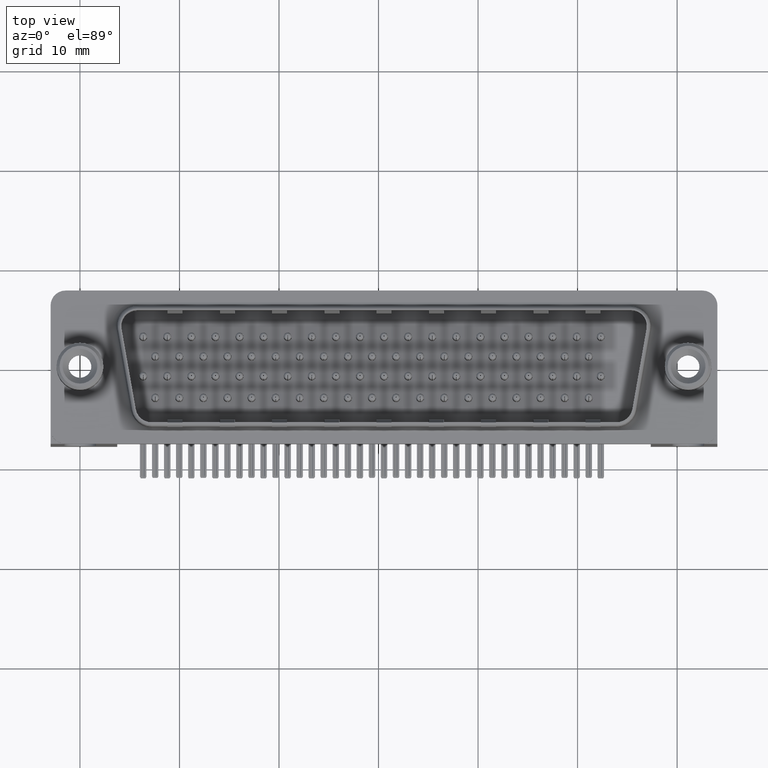
[diagram: clean part render]
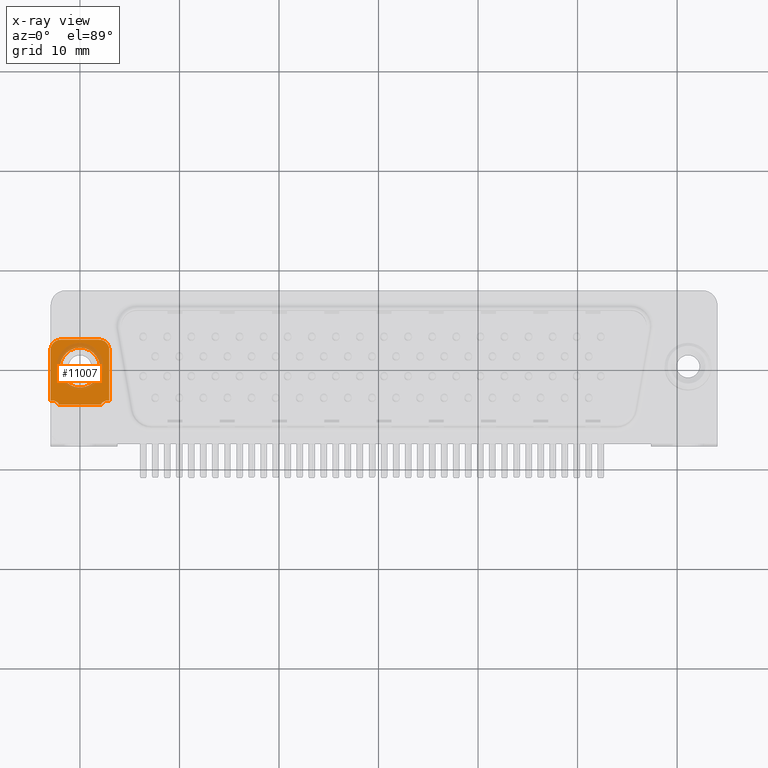
[diagram: x-ray — body ghosted, one internal face saturated and labeled with its STEP entity id]
A machine part, top view, then the same camera in x-ray: the body is ghosted and one INTERNAL B-rep face — a face not visible from any outside direction — is saturated and labeled: STEP entity #11007.
In plain terms, the highlighted planar face has unit normal (0, 0, 1).
Its self-contained STEP definition (entity closure, byte-faithful):
#963 = DIRECTION ( 'NONE',  ( 0.0000000000000000000, -1.000000000000000000, 0.0000000000000000000 ) ) ;
#1584 = CARTESIAN_POINT ( 'NONE',  ( 0.0000000000000000000, -2.000000000000000000, -2.500000000000000000 ) ) ;
#1709 = VERTEX_POINT ( 'NONE', #25574 ) ;
#1875 = DIRECTION ( 'NONE',  ( -0.0000000000000000000, -0.0000000000000000000, -1.000000000000000000 ) ) ;
#2263 = VECTOR ( 'NONE', #14492, 1000.000000000000000 ) ;
#2396 = CARTESIAN_POINT ( 'NONE',  ( -1.950000000000002200, 1.800000000000000300, -2.500000000000000000 ) ) ;
#2743 = VECTOR ( 'NONE', #6104, 1000.000000000000000 ) ;
#3440 = CARTESIAN_POINT ( 'NONE',  ( 2.950000000000497600, 1.800000000000000300, -2.500000000000000000 ) ) ;
#3514 = CARTESIAN_POINT ( 'NONE',  ( -2.950000000000001100, 0.0000000000000000000, -2.500000000000000000 ) ) ;
#3585 = ORIENTED_EDGE ( 'NONE', *, *, #13084, .T. ) ;
#3746 = LINE ( 'NONE', #15593, #2743 ) ;
#5139 = CIRCLE ( 'NONE', #39053, 1.000000000000000000 ) ;
#5578 = DIRECTION ( 'NONE',  ( 0.0000000000000000000, 1.000000000000000000, 0.0000000000000000000 ) ) ;
#5963 = CARTESIAN_POINT ( 'NONE',  ( -2.149999999999608700, -3.599999999999359300, -2.500000000000000000 ) ) ;
#6104 = DIRECTION ( 'NONE',  ( 1.000000000000000000, 0.0000000000000000000, 0.0000000000000000000 ) ) ;
#6347 = VECTOR ( 'NONE', #963, 1000.000000000000000 ) ;
#6866 = EDGE_LOOP ( 'NONE', ( #11709, #16716, #12217, #13106, #13933, #39829, #31644, #28033, #22247, #13254 ) ) ;
#6981 = DIRECTION ( 'NONE',  ( 0.0000000000000000000, 0.0000000000000000000, 1.000000000000000000 ) ) ;
#7042 = CIRCLE ( 'NONE', #7700, 2.000000000000000000 ) ;
#7196 = FACE_OUTER_BOUND ( 'NONE', #6866, .T. ) ;
#7700 = AXIS2_PLACEMENT_3D ( 'NONE', #15984, #38391, #19240 ) ;
#8139 = CARTESIAN_POINT ( 'NONE',  ( 2.950000000000998500, -3.299999999999895000, -2.500000000000000000 ) ) ;
#8313 = CIRCLE ( 'NONE', #16422, 1.000000000000000000 ) ;
#8687 = DIRECTION ( 'NONE',  ( 0.0000000000000000000, -1.000000000000000000, 0.0000000000000000000 ) ) ;
#8943 = CARTESIAN_POINT ( 'NONE',  ( -2.150000000000001700, -3.699749197498457800, -2.500021533221965500 ) ) ;
#10778 = VERTEX_POINT ( 'NONE', #3440 ) ;
#10857 = CARTESIAN_POINT ( 'NONE',  ( -2.950000000000001100, -3.299999999999871500, -2.500000000000000000 ) ) ;
#11007 = ADVANCED_FACE ( 'NONE', ( #7196, #26242 ), #17355, .T. ) ;
#11258 = VERTEX_POINT ( 'NONE', #40923 ) ;
#11510 = AXIS2_PLACEMENT_3D ( 'NONE', #20987, #1875, #24201 ) ;
#11709 = ORIENTED_EDGE ( 'NONE', *, *, #36260, .F. ) ;
#12217 = ORIENTED_EDGE ( 'NONE', *, *, #33463, .F. ) ;
#12682 = AXIS2_PLACEMENT_3D ( 'NONE', #2396, #24725, #5578 ) ;
#13006 = VERTEX_POINT ( 'NONE', #5963 ) ;
#13084 = EDGE_CURVE ( 'NONE', #22330, #29011, #7042, .T. ) ;
#13106 = ORIENTED_EDGE ( 'NONE', *, *, #33952, .F. ) ;
#13254 = ORIENTED_EDGE ( 'NONE', *, *, #33302, .F. ) ;
#13421 = CARTESIAN_POINT ( 'NONE',  ( 2.449293598294706400E-016, 2.000000000000000000, -2.500000000000000000 ) ) ;
#13933 = ORIENTED_EDGE ( 'NONE', *, *, #39027, .F. ) ;
#14492 = DIRECTION ( 'NONE',  ( 0.0000000000000000000, 1.000000000000000000, 0.0000000000000000000 ) ) ;
#14550 = DIRECTION ( 'NONE',  ( -0.0000000000000000000, -0.0000000000000000000, -1.000000000000000000 ) ) ;
#14606 = VERTEX_POINT ( 'NONE', #29222 ) ;
#14773 = VERTEX_POINT ( 'NONE', #10857 ) ;
#15420 = AXIS2_PLACEMENT_3D ( 'NONE', #36156, #39820, #20639 ) ;
#15593 = CARTESIAN_POINT ( 'NONE',  ( 12.49499999999999900, 2.799999999999999800, -2.500000000000000000 ) ) ;
#15610 = VERTEX_POINT ( 'NONE', #8943 ) ;
#15984 = CARTESIAN_POINT ( 'NONE',  ( 0.0000000000000000000, 0.0000000000000000000, -2.500000000000000000 ) ) ;
#16402 = VERTEX_POINT ( 'NONE', #32697 ) ;
#16415 = CIRCLE ( 'NONE', #21687, 1.000000000000000000 ) ;
#16422 = AXIS2_PLACEMENT_3D ( 'NONE', #36455, #17246, #39705 ) ;
#16716 = ORIENTED_EDGE ( 'NONE', *, *, #29736, .F. ) ;
#17241 = CARTESIAN_POINT ( 'NONE',  ( -0.7166666666666680100, -3.699749229251267900, -2.500084843647972600 ) ) ;
#17246 = DIRECTION ( 'NONE',  ( 0.0000000000000000000, 0.0000000000000000000, 1.000000000000000000 ) ) ;
#17355 = PLANE ( 'NONE',  #15420 ) ;
#17374 = ORIENTED_EDGE ( 'NONE', *, *, #34459, .T. ) ;
#17464 = VECTOR ( 'NONE', #8687, 1000.000000000000000 ) ;
#18287 = EDGE_CURVE ( 'NONE', #1709, #11258, #32148, .T. ) ;
#19240 = DIRECTION ( 'NONE',  ( 1.000000000000000000, 0.0000000000000000000, 0.0000000000000000000 ) ) ;
#20236 = LINE ( 'NONE', #27254, #2263 ) ;
#20563 = B_SPLINE_CURVE_WITH_KNOTS ( 'NONE', 3,
 ( #30038, #33203, #17241, #39703 ),
 .UNSPECIFIED., .F., .F.,
 ( 4, 4 ),
 ( 0.0000000000000000000, 1.000000000000000000 ),
 .UNSPECIFIED. ) ;
#20639 = DIRECTION ( 'NONE',  ( 0.0000000000000000000, -1.000000000000000000, 0.0000000000000000000 ) ) ;
#20885 = VERTEX_POINT ( 'NONE', #8139 ) ;
#20987 = CARTESIAN_POINT ( 'NONE',  ( 0.0000000000000000000, 0.0000000000000000000, -2.500000000000000000 ) ) ;
#21024 = CARTESIAN_POINT ( 'NONE',  ( 2.150000000000505700, -3.600000000000492600, -2.500000000000000000 ) ) ;
#21687 = AXIS2_PLACEMENT_3D ( 'NONE', #33707, #14550, #36925 ) ;
#22247 = ORIENTED_EDGE ( 'NONE', *, *, #38814, .F. ) ;
#22330 = VERTEX_POINT ( 'NONE', #1584 ) ;
#24201 = DIRECTION ( 'NONE',  ( 1.000000000000000000, 0.0000000000000000000, 0.0000000000000000000 ) ) ;
#24689 = CARTESIAN_POINT ( 'NONE',  ( 2.950000000000998500, 0.0000000000000000000, -2.500000000000000000 ) ) ;
#24725 = DIRECTION ( 'NONE',  ( 0.0000000000000000000, 0.0000000000000000000, -1.000000000000000000 ) ) ;
#25383 = LINE ( 'NONE', #26369, #6347 ) ;
#25574 = CARTESIAN_POINT ( 'NONE',  ( -2.950000000000001100, 1.800000000000000000, -2.500000000000000000 ) ) ;
#26163 = CARTESIAN_POINT ( 'NONE',  ( -2.867470740750001700, -4.296588642001999900, -2.500000000000000000 ) ) ;
#26242 = FACE_BOUND ( 'NONE', #40523, .T. ) ;
#26369 = CARTESIAN_POINT ( 'NONE',  ( 2.149999999999999000, -3.600000000000000500, -2.500000000000000000 ) ) ;
#27254 = CARTESIAN_POINT ( 'NONE',  ( -2.150000000000000800, -4.200000000000000200, -2.500000000000000000 ) ) ;
#28033 = ORIENTED_EDGE ( 'NONE', *, *, #40090, .F. ) ;
#28040 = LINE ( 'NONE', #24689, #17464 ) ;
#29011 = VERTEX_POINT ( 'NONE', #13421 ) ;
#29222 = CARTESIAN_POINT ( 'NONE',  ( 2.149999999999999900, -3.699749197498457800, -2.500021533221966000 ) ) ;
#29381 = DIRECTION ( 'NONE',  ( 0.0000000000000000000, -1.000000000000000000, 0.0000000000000000000 ) ) ;
#29736 = EDGE_CURVE ( 'NONE', #20885, #33966, #8313, .T. ) ;
#30038 = CARTESIAN_POINT ( 'NONE',  ( 2.149999999999999900, -3.699749197498457800, -2.500021533221966000 ) ) ;
#30558 = VECTOR ( 'NONE', #35335, 1000.000000000000000 ) ;
#31644 = ORIENTED_EDGE ( 'NONE', *, *, #33150, .F. ) ;
#32148 = CIRCLE ( 'NONE', #12682, 1.000000000000000200 ) ;
#32697 = CARTESIAN_POINT ( 'NONE',  ( 1.950000030607499600, 2.799999999999999400, -2.500000000000000000 ) ) ;
#33150 = EDGE_CURVE ( 'NONE', #14773, #1709, #39075, .T. ) ;
#33203 = CARTESIAN_POINT ( 'NONE',  ( 0.7166666666666662300, -3.699749229251267900, -2.500084843647972600 ) ) ;
#33302 = EDGE_CURVE ( 'NONE', #14606, #15610, #20563, .T. ) ;
#33463 = EDGE_CURVE ( 'NONE', #10778, #20885, #28040, .T. ) ;
#33707 = CARTESIAN_POINT ( 'NONE',  ( 1.949999999999998600, 1.800000000000000300, -2.500000000000000000 ) ) ;
#33952 = EDGE_CURVE ( 'NONE', #16402, #10778, #16415, .T. ) ;
#33966 = VERTEX_POINT ( 'NONE', #21024 ) ;
#34459 = EDGE_CURVE ( 'NONE', #29011, #22330, #35920, .T. ) ;
#35335 = DIRECTION ( 'NONE',  ( -0.0000000000000000000, 1.000000000000000000, -0.0000000000000000000 ) ) ;
#35920 = CIRCLE ( 'NONE', #11510, 2.000000000000000000 ) ;
#36156 = CARTESIAN_POINT ( 'NONE',  ( 12.49499999999999900, 0.0000000000000000000, -2.500000000000000000 ) ) ;
#36260 = EDGE_CURVE ( 'NONE', #33966, #14606, #25383, .T. ) ;
#36455 = CARTESIAN_POINT ( 'NONE',  ( 2.867470740751998400, -4.296588642001999900, -2.500000000000000000 ) ) ;
#36925 = DIRECTION ( 'NONE',  ( 0.0000000000000000000, -1.000000000000000000, 0.0000000000000000000 ) ) ;
#38391 = DIRECTION ( 'NONE',  ( -0.0000000000000000000, -0.0000000000000000000, -1.000000000000000000 ) ) ;
#38814 = EDGE_CURVE ( 'NONE', #15610, #13006, #20236, .T. ) ;
#39027 = EDGE_CURVE ( 'NONE', #11258, #16402, #3746, .T. ) ;
#39053 = AXIS2_PLACEMENT_3D ( 'NONE', #26163, #6981, #29381 ) ;
#39075 = LINE ( 'NONE', #3514, #30558 ) ;
#39703 = CARTESIAN_POINT ( 'NONE',  ( -2.150000000000001700, -3.699749197498457800, -2.500021533221965500 ) ) ;
#39705 = DIRECTION ( 'NONE',  ( 0.0000000000000000000, -1.000000000000000000, 0.0000000000000000000 ) ) ;
#39820 = DIRECTION ( 'NONE',  ( 0.0000000000000000000, 0.0000000000000000000, 1.000000000000000000 ) ) ;
#39829 = ORIENTED_EDGE ( 'NONE', *, *, #18287, .F. ) ;
#40090 = EDGE_CURVE ( 'NONE', #13006, #14773, #5139, .T. ) ;
#40523 = EDGE_LOOP ( 'NONE', ( #3585, #17374 ) ) ;
#40923 = CARTESIAN_POINT ( 'NONE',  ( -1.950000020320001200, 2.799999999999999800, -2.500000000000000000 ) ) ;